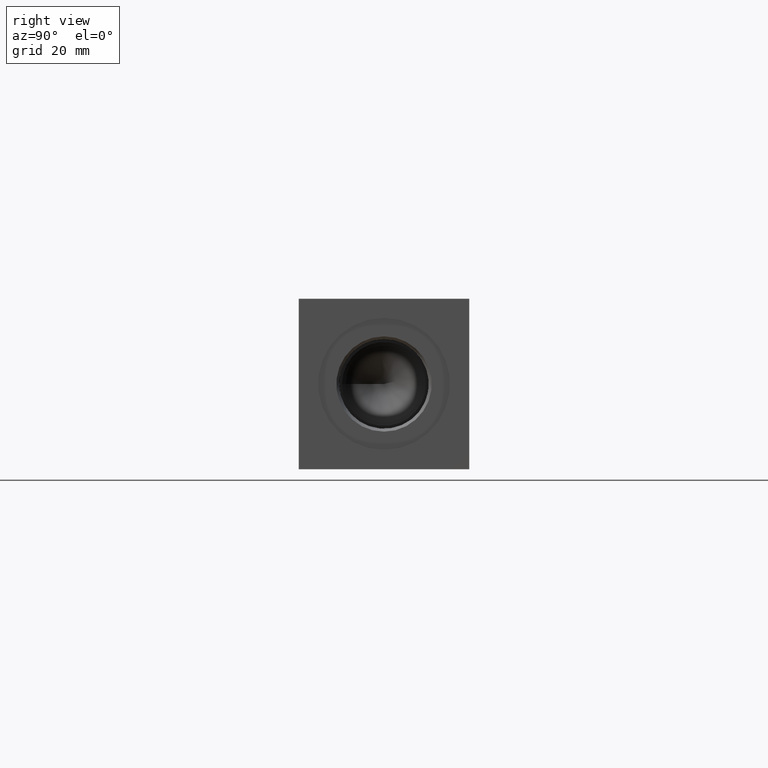
[diagram: clean part render]
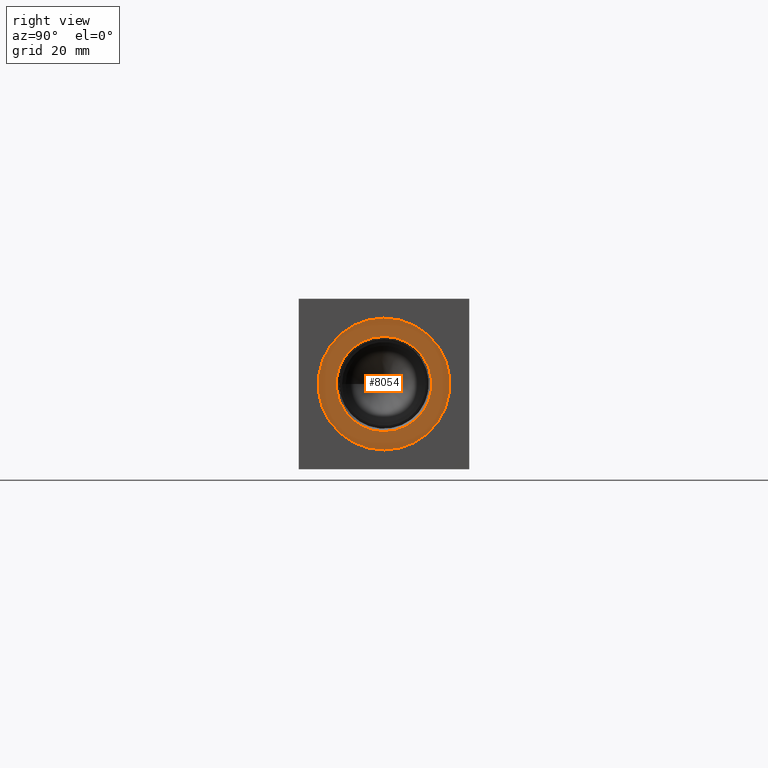
[diagram: same view with one face highlighted and labeled with its STEP entity id]
A machine part, right view. The second image highlights one B-rep face of the part: STEP entity #8054.
In plain terms, the highlighted planar face has unit normal (-1, 0, 0).
Its self-contained STEP definition (entity closure, byte-faithful):
#127=CIRCLE('',#8395,24.5618);
#128=CIRCLE('',#8396,24.5618);
#129=CIRCLE('',#8398,17.7546);
#130=CIRCLE('',#8399,17.7546);
#288=FACE_BOUND('',#1427,.T.);
#979=FACE_OUTER_BOUND('',#1426,.T.);
#1426=EDGE_LOOP('',(#6709,#6710));
#1427=EDGE_LOOP('',(#6711,#6712));
#3620=VERTEX_POINT('',#13594);
#3621=VERTEX_POINT('',#13596);
#3622=VERTEX_POINT('',#13600);
#3623=VERTEX_POINT('',#13601);
#4678=EDGE_CURVE('',#3620,#3621,#127,.T.);
#4679=EDGE_CURVE('',#3621,#3620,#128,.T.);
#4680=EDGE_CURVE('',#3622,#3623,#129,.T.);
#4681=EDGE_CURVE('',#3623,#3622,#130,.T.);
#6709=ORIENTED_EDGE('',*,*,#4679,.F.);
#6710=ORIENTED_EDGE('',*,*,#4678,.F.);
#6711=ORIENTED_EDGE('',*,*,#4680,.T.);
#6712=ORIENTED_EDGE('',*,*,#4681,.T.);
#7394=PLANE('',#8397);
#8054=ADVANCED_FACE('',(#979,#288),#7394,.F.);
#8395=AXIS2_PLACEMENT_3D('',#13597,#9777,#9778);
#8396=AXIS2_PLACEMENT_3D('',#13598,#9779,#9780);
#8397=AXIS2_PLACEMENT_3D('',#13599,#9781,#9782);
#8398=AXIS2_PLACEMENT_3D('',#13602,#9783,#9784);
#8399=AXIS2_PLACEMENT_3D('',#13603,#9785,#9786);
#9777=DIRECTION('center_axis',(-1.,0.,0.));
#9778=DIRECTION('ref_axis',(0.,0.,1.));
#9779=DIRECTION('center_axis',(-1.,0.,0.));
#9780=DIRECTION('ref_axis',(0.,0.,1.));
#9781=DIRECTION('center_axis',(-1.,0.,0.));
#9782=DIRECTION('ref_axis',(0.,0.,1.));
#9783=DIRECTION('center_axis',(-1.,0.,0.));
#9784=DIRECTION('ref_axis',(0.,0.,1.));
#9785=DIRECTION('center_axis',(-1.,0.,0.));
#9786=DIRECTION('ref_axis',(0.,0.,1.));
#13594=CARTESIAN_POINT('',(256.3876,31.75,56.3118));
#13596=CARTESIAN_POINT('',(256.3876,31.75,7.1882));
#13597=CARTESIAN_POINT('Origin',(256.3876,31.75,31.75));
#13598=CARTESIAN_POINT('Origin',(256.3876,31.75,31.75));
#13599=CARTESIAN_POINT('Origin',(256.3876,31.75,13.9954));
#13600=CARTESIAN_POINT('',(256.3876,31.75,13.9954));
#13601=CARTESIAN_POINT('',(256.3876,31.75,49.5046));
#13602=CARTESIAN_POINT('Origin',(256.3876,31.75,31.75));
#13603=CARTESIAN_POINT('Origin',(256.3876,31.75,31.75));